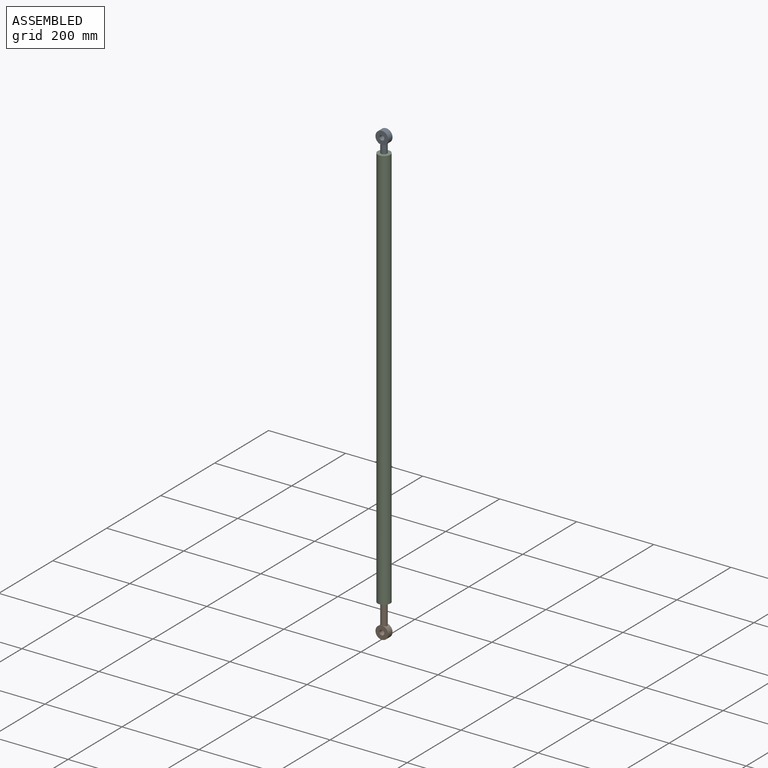
[diagram: assembled view]
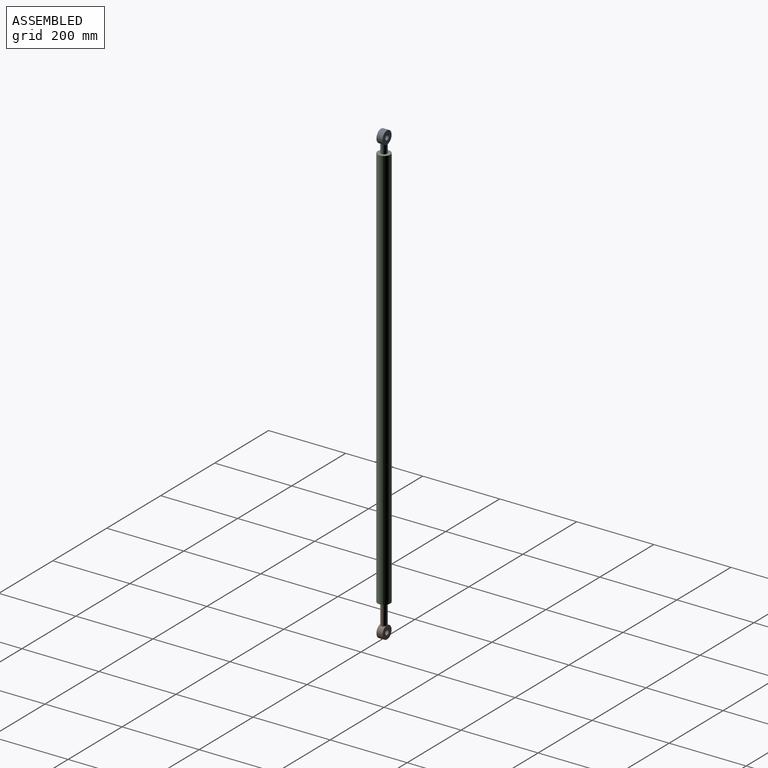
[diagram: assembled view, second angle]
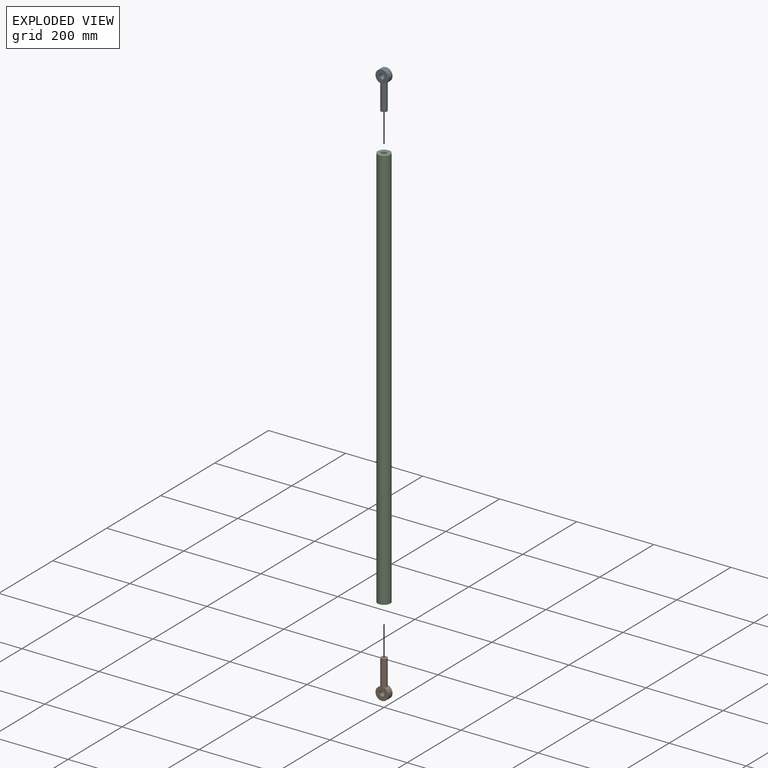
[diagram: exploded view]
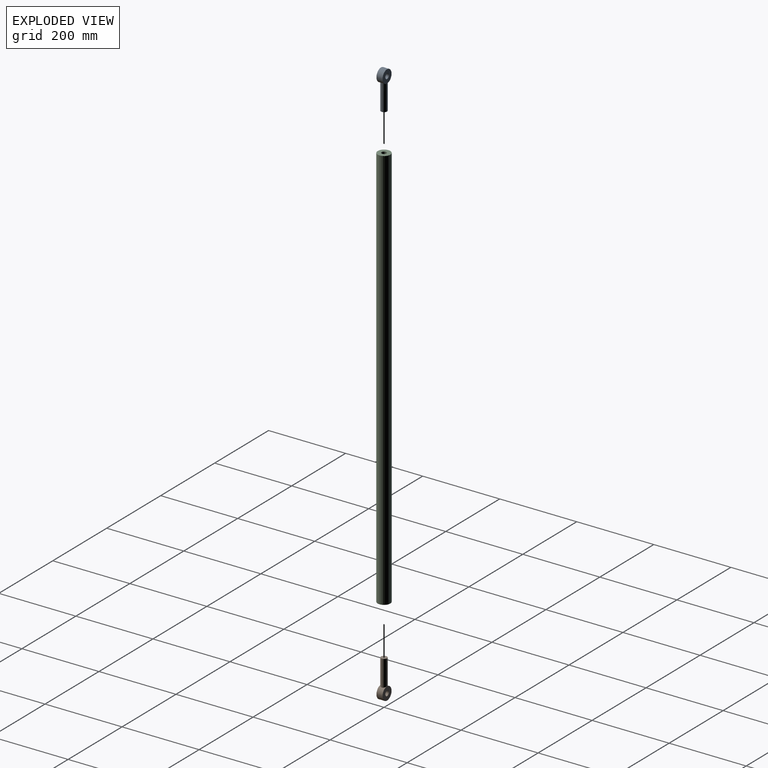
[diagram: exploded view, second angle]
ASSEMBLY  parts=3 mates=2
PART A: 6 faces, bbox 33.3x99.2x15.9 mm
  f0: cylinder r=16.67mm len=33.34mm, axis (0,0,-1), area 1458.8mm2, adj f2,f3,f4
  f1: cylinder r=6.35mm len=15.88mm, axis (0,0,-1), area 633.4mm2, adj f2,f3
  f2: plane 33.34x33.34mm, normal (0,0,1), area 746.2mm2, adj f0,f1
  f3: plane 33.34x33.34mm, normal (0,0,-1), area 746.2mm2, adj f0,f1
  f4: cylinder r=7.94mm len=67.89mm, axis (0,1,0), area 3335mm2, adj f0,f5
  f5: plane 15.88x15.88mm, normal (0,-1,0), area 197.9mm2, adj f4
PART B: same geometry as A
PART C: 4 faces, bbox 32.9x1053x32.9 mm
  f0: cylinder r=6.35mm len=1053.05mm, axis (0,1,0), area 42014.8mm2, adj f2,f3
  f1: cylinder r=16.45mm len=1053.05mm, axis (0,1,0), area 108833.6mm2, adj f2,f3
  f2: plane 32.9x32.9mm, normal (0,-1,0), area 723.3mm2, adj f0,f1
  f3: plane 32.9x32.9mm, normal (0,1,0), area 723.3mm2, adj f0,f1
PLACE A rot(axis=(1,0,0),90deg) t=(0,0,1078.45)mm
PLACE B rot(axis=(-1,0,0),90deg) t=(0,0,-82.55)mm
PLACE C rot(axis=(-1,0,0),90deg) t=(0,0,-12.7)mm
MATE slider A.f4 <-> C.f0  axis (0,0,1) through (0,0,1064.22)mm
MATE slider B.f4 <-> C.f0  axis (0,0,1) through (0,0,0)mm
